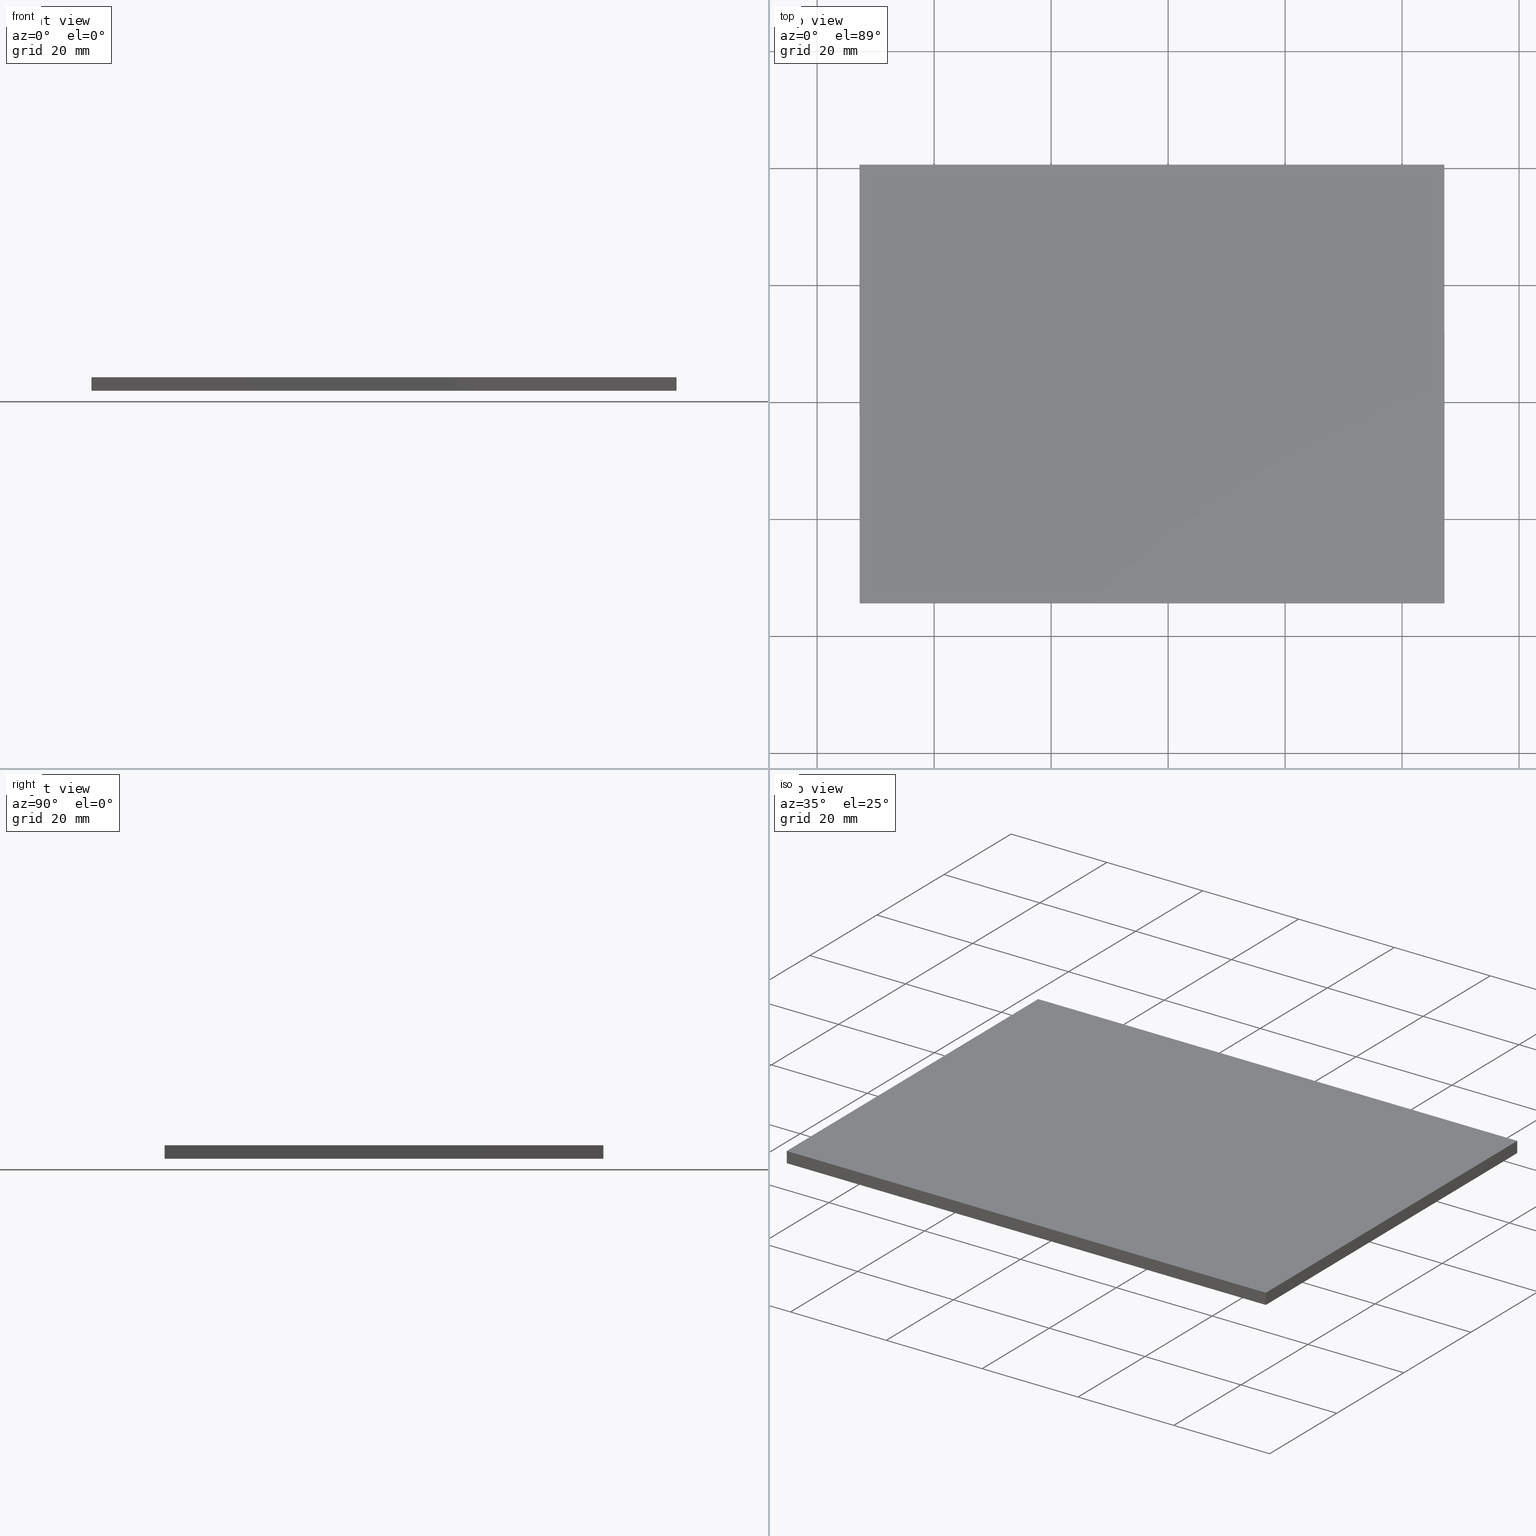
[diagram: canonical four-view strip — front | top / right | iso, engineering-drawing reading convention]
A machine part, canonical four-view strip (front | top / right | iso — engineering-drawing reading convention). The complete STEP part file that produces these views, byte-faithful:
ISO-10303-21;
HEADER;
FILE_DESCRIPTION (( 'STEP AP214' ),
    '1' );
FILE_NAME ('302528.STEP',
    '2019-08-13T07:11:26',
    ( '' ),
    ( '' ),
    'SwSTEP 2.0',
    'SolidWorks 2016',
    '' );
FILE_SCHEMA (( 'AUTOMOTIVE_DESIGN' ));
ENDSEC;

DATA;
#1 = EDGE_LOOP ( 'NONE', ( #187, #54, #140, #80 ) ) ;
#2 = ADVANCED_FACE ( 'NONE', ( #118 ), #26, .F. ) ;
#3 = ORIENTED_EDGE ( 'NONE', *, *, #14, .T. ) ;
#4 = COLOUR_RGB ( '',1.000000000000000000, 1.000000000000000000, 1.000000000000000000 ) ;
#5 = DIRECTION ( 'NONE',  ( 2.775639150277182100E-016, 1.000000000000000000, -0.0000000000000000000 ) ) ;
#6 = SHAPE_DEFINITION_REPRESENTATION ( #37, #153 ) ;
#7 = CARTESIAN_POINT ( 'NONE',  ( 167.2299678845673700, 160.6264836690531600, 2.299999999999999800 ) ) ;
#8 = CARTESIAN_POINT ( 'NONE',  ( 267.2299678845673200, 160.6264836690531900, 0.0000000000000000000 ) ) ;
#9 = DIRECTION ( 'NONE',  ( 2.775557561562892800E-016, -1.000000000000000000, 0.0000000000000000000 ) ) ;
#10 = ADVANCED_FACE ( 'NONE', ( #74 ), #131, .T. ) ;
#11 = FILL_AREA_STYLE_COLOUR ( '', #4 ) ;
#12 = VECTOR ( 'NONE', #70, 1000.000000000000000 ) ;
#13 = CARTESIAN_POINT ( 'NONE',  ( 267.2628910959036800, 85.62648366905317200, 0.0000000000000000000 ) ) ;
#14 = EDGE_CURVE ( 'NONE', #100, #121, #64, .T. ) ;
#15 = CARTESIAN_POINT ( 'NONE',  ( 167.2658305527232900, 85.62648366905320100, 2.299999999999999800 ) ) ;
#16 = DIRECTION ( 'NONE',  ( 1.000000000000000000, -2.775639150277182100E-016, 0.0000000000000000000 ) ) ;
#17 = ORIENTED_EDGE ( 'NONE', *, *, #18, .F. ) ;
#18 = EDGE_CURVE ( 'NONE', #120, #100, #39, .T. ) ;
#19 = ORIENTED_EDGE ( 'NONE', *, *, #122, .F. ) ;
#20 = VECTOR ( 'NONE', #115, 999.9999999999998900 ) ;
#21 = DIRECTION ( 'NONE',  ( -0.9999999036499832600, -0.0004389761088560449900, 0.0000000000000000000 ) ) ;
#22 = ORIENTED_EDGE ( 'NONE', *, *, #157, .F. ) ;
#23 = DIRECTION ( 'NONE',  ( -0.0004389761088560449900, 0.9999999036499833700, -0.0000000000000000000 ) ) ;
#24 = EDGE_CURVE ( 'NONE', #33, #159, #72, .T. ) ;
#25 =( NAMED_UNIT ( * ) PLANE_ANGLE_UNIT ( ) SI_UNIT ( $, .RADIAN. ) );
#26 = PLANE ( 'NONE',  #93 ) ;
#27 = ADVANCED_FACE ( 'NONE', ( #36 ), #111, .F. ) ;
#28 = DIRECTION ( 'NONE',  ( -0.0004781688540799851800, 0.9999998856772670500, 0.0000000000000000000 ) ) ;
#29 = CARTESIAN_POINT ( 'NONE',  ( 167.2299678845673700, 160.6264836690531600, 2.299999999999999800 ) ) ;
#30 = PRODUCT_RELATED_PRODUCT_CATEGORY ( 'part', '', ( #94 ) ) ;
#31 = CARTESIAN_POINT ( 'NONE',  ( 167.2299678845673700, 160.6264836690531600, 2.299999999999999800 ) ) ;
#32 = CARTESIAN_POINT ( 'NONE',  ( 267.2299678845673200, 160.6264836690531900, 2.299999999999999800 ) ) ;
#33 = VERTEX_POINT ( 'NONE', #144 ) ;
#34 = VECTOR ( 'NONE', #82, 1000.000000000000000 ) ;
#35 = EDGE_CURVE ( 'NONE', #185, #120, #98, .T. ) ;
#36 = FACE_OUTER_BOUND ( 'NONE', #78, .T. ) ;
#37 = PRODUCT_DEFINITION_SHAPE ( 'NONE', 'NONE',  #186 ) ;
#38 = FACE_OUTER_BOUND ( 'NONE', #1, .T. ) ;
#39 = LINE ( 'NONE', #42, #155 ) ;
#40 = DIRECTION ( 'NONE',  ( 1.000000000000000000, 0.0000000000000000000, -0.0000000000000000000 ) ) ;
#41 = APPLICATION_PROTOCOL_DEFINITION ( 'draft international standard', 'automotive_design', 1998, #58 ) ;
#42 = CARTESIAN_POINT ( 'NONE',  ( 167.2299678845673700, 160.6264836690531600, 2.299999999999999800 ) ) ;
#43 =( LENGTH_UNIT ( ) NAMED_UNIT ( * ) SI_UNIT ( .MILLI., .METRE. ) );
#44 = PRODUCT_CONTEXT ( 'NONE', #68, 'mechanical' ) ;
#45 =( NAMED_UNIT ( * ) PLANE_ANGLE_UNIT ( ) SI_UNIT ( $, .RADIAN. ) );
#46 = DIRECTION ( 'NONE',  ( 0.0000000000000000000, 0.0000000000000000000, 1.000000000000000000 ) ) ;
#47 = DIRECTION ( 'NONE',  ( -0.0000000000000000000, -0.0000000000000000000, -1.000000000000000000 ) ) ;
#48 = EDGE_CURVE ( 'NONE', #120, #51, #179, .T. ) ;
#49 = CARTESIAN_POINT ( 'NONE',  ( 267.2628910959036800, 85.62648366905317200, 2.299999999999999800 ) ) ;
#50 = LINE ( 'NONE', #49, #182 ) ;
#51 = VERTEX_POINT ( 'NONE', #8 ) ;
#52 = STYLED_ITEM ( 'NONE', ( #117 ), #79 ) ;
#53 = ORIENTED_EDGE ( 'NONE', *, *, #18, .T. ) ;
#54 = ORIENTED_EDGE ( 'NONE', *, *, #48, .F. ) ;
#55 = DIRECTION ( 'NONE',  ( 0.0004389761088560449900, -0.9999999036499832600, 0.0000000000000000000 ) ) ;
#56 =( NAMED_UNIT ( * ) SI_UNIT ( $, .STERADIAN. ) SOLID_ANGLE_UNIT ( ) );
#57 = DIRECTION ( 'NONE',  ( -1.000000000000000000, 2.775639150277182100E-016, 0.0000000000000000000 ) ) ;
#58 = APPLICATION_CONTEXT ( 'automotive_design' ) ;
#59 = CARTESIAN_POINT ( 'NONE',  ( 267.2299678845673200, 160.6264836690531900, 0.0000000000000000000 ) ) ;
#60 =( LENGTH_UNIT ( ) NAMED_UNIT ( * ) SI_UNIT ( .MILLI., .METRE. ) );
#61 =( GEOMETRIC_REPRESENTATION_CONTEXT ( 3 ) GLOBAL_UNCERTAINTY_ASSIGNED_CONTEXT ( ( #169 ) ) GLOBAL_UNIT_ASSIGNED_CONTEXT ( ( #142, #45, #195 ) ) REPRESENTATION_CONTEXT ( 'NONE', 'WORKASPACE' ) );
#62 = ORIENTED_EDGE ( 'NONE', *, *, #116, .F. ) ;
#63 = ADVANCED_FACE ( 'NONE', ( #38 ), #191, .F. ) ;
#64 = LINE ( 'NONE', #7, #197 ) ;
#65 = PRESENTATION_STYLE_ASSIGNMENT (( #192 ) ) ;
#66 = CARTESIAN_POINT ( 'NONE',  ( 167.2299678845673700, 160.6264836690531600, 2.299999999999999800 ) ) ;
#67 = FACE_OUTER_BOUND ( 'NONE', #201, .T. ) ;
#68 = APPLICATION_CONTEXT ( 'automotive_design' ) ;
#69 = ADVANCED_FACE ( 'NONE', ( #67 ), #148, .F. ) ;
#70 = DIRECTION ( 'NONE',  ( -1.000000000000000000, -2.775557561562892800E-016, -0.0000000000000000000 ) ) ;
#71 =( NAMED_UNIT ( * ) SI_UNIT ( $, .STERADIAN. ) SOLID_ANGLE_UNIT ( ) );
#72 = LINE ( 'NONE', #176, #34 ) ;
#73 = PRESENTATION_LAYER_ASSIGNMENT (  '', '', ( #52 ) ) ;
#74 = FACE_OUTER_BOUND ( 'NONE', #174, .T. ) ;
#75 = LINE ( 'NONE', #189, #139 ) ;
#76 = FACE_OUTER_BOUND ( 'NONE', #190, .T. ) ;
#77 = AXIS2_PLACEMENT_3D ( 'NONE', #178, #99, #40 ) ;
#78 = EDGE_LOOP ( 'NONE', ( #199, #22, #108, #156 ) ) ;
#79 = MANIFOLD_SOLID_BREP ( '͹̨-����1', #172 ) ;
#80 = ORIENTED_EDGE ( 'NONE', *, *, #157, .T. ) ;
#81 = CARTESIAN_POINT ( 'NONE',  ( 267.2299678845673200, 160.6264836690531900, 2.299999999999999800 ) ) ;
#82 = DIRECTION ( 'NONE',  ( -0.0000000000000000000, -0.0000000000000000000, -1.000000000000000000 ) ) ;
#83 = PRODUCT_DEFINITION_CONTEXT ( 'detailed design', #58, 'design' ) ;
#84 = DIRECTION ( 'NONE',  ( 1.000000000000000000, 2.775557561562892800E-016, 0.0000000000000000000 ) ) ;
#85 = FILL_AREA_STYLE ('',( #129 ) ) ;
#86 = CARTESIAN_POINT ( 'NONE',  ( 167.2299678845673700, 160.6264836690531600, 2.299999999999999800 ) ) ;
#87 = SURFACE_STYLE_FILL_AREA ( #85 ) ;
#88 = ORIENTED_EDGE ( 'NONE', *, *, #116, .T. ) ;
#89 = CARTESIAN_POINT ( 'NONE',  ( 167.2299678845673700, 160.6264836690531600, 0.0000000000000000000 ) ) ;
#90 =( GEOMETRIC_REPRESENTATION_CONTEXT ( 3 ) GLOBAL_UNCERTAINTY_ASSIGNED_CONTEXT ( ( #184 ) ) GLOBAL_UNIT_ASSIGNED_CONTEXT ( ( #60, #194, #71 ) ) REPRESENTATION_CONTEXT ( 'NONE', 'WORKASPACE' ) );
#91 = ORIENTED_EDGE ( 'NONE', *, *, #14, .F. ) ;
#92 = LINE ( 'NONE', #29, #20 ) ;
#93 = AXIS2_PLACEMENT_3D ( 'NONE', #66, #9, #84 ) ;
#94 = PRODUCT ( '302528', '302528', '', ( #44 ) ) ;
#95 = ORIENTED_EDGE ( 'NONE', *, *, #158, .F. ) ;
#96 = VECTOR ( 'NONE', #16, 1000.000000000000000 ) ;
#97 = AXIS2_PLACEMENT_3D ( 'NONE', #31, #166, #28 ) ;
#98 = LINE ( 'NONE', #81, #196 ) ;
#99 = DIRECTION ( 'NONE',  ( 0.0000000000000000000, 0.0000000000000000000, 1.000000000000000000 ) ) ;
#100 = VERTEX_POINT ( 'NONE', #86 ) ;
#101 = VECTOR ( 'NONE', #134, 1000.000000000000000 ) ;
#102 = DIRECTION ( 'NONE',  ( -0.0000000000000000000, -0.0000000000000000000, -1.000000000000000000 ) ) ;
#103 = COLOUR_RGB ( '',1.000000000000000000, 1.000000000000000000, 1.000000000000000000 ) ;
#104 = DIRECTION ( 'NONE',  ( 0.0000000000000000000, 0.0000000000000000000, 1.000000000000000000 ) ) ;
#105 = DIRECTION ( 'NONE',  ( 0.0004781688540799851800, -0.9999998856772670500, 0.0000000000000000000 ) ) ;
#106 = CARTESIAN_POINT ( 'NONE',  ( 167.2658305527232900, 85.62648366905320100, 0.0000000000000000000 ) ) ;
#107 = EDGE_LOOP ( 'NONE', ( #162, #91, #17, #165 ) ) ;
#108 = ORIENTED_EDGE ( 'NONE', *, *, #167, .F. ) ;
#109 = AXIS2_PLACEMENT_3D ( 'NONE', #149, #46, #146 ) ;
#110 = VECTOR ( 'NONE', #102, 1000.000000000000000 ) ;
#111 = PLANE ( 'NONE',  #150 ) ;
#112 = CARTESIAN_POINT ( 'NONE',  ( 167.2658305527232900, 85.62648366905320100, 2.299999999999999800 ) ) ;
#113 = SURFACE_SIDE_STYLE ('',( #87 ) ) ;
#114 = VERTEX_POINT ( 'NONE', #13 ) ;
#115 = DIRECTION ( 'NONE',  ( 0.0004781688540799851800, -0.9999998856772670500, 0.0000000000000000000 ) ) ;
#116 = EDGE_CURVE ( 'NONE', #121, #159, #75, .T. ) ;
#117 = PRESENTATION_STYLE_ASSIGNMENT (( #193 ) ) ;
#118 = FACE_OUTER_BOUND ( 'NONE', #107, .T. ) ;
#119 = CARTESIAN_POINT ( 'NONE',  ( 267.2628910959036800, 85.62648366905317200, 2.299999999999999800 ) ) ;
#120 = VERTEX_POINT ( 'NONE', #32 ) ;
#121 = VERTEX_POINT ( 'NONE', #136 ) ;
#122 = EDGE_CURVE ( 'NONE', #51, #121, #135, .T. ) ;
#123 = ORIENTED_EDGE ( 'NONE', *, *, #141, .F. ) ;
#124 = STYLED_ITEM ( 'NONE', ( #65 ), #153 ) ;
#125 =( GEOMETRIC_REPRESENTATION_CONTEXT ( 3 ) GLOBAL_UNCERTAINTY_ASSIGNED_CONTEXT ( ( #132 ) ) GLOBAL_UNIT_ASSIGNED_CONTEXT ( ( #43, #25, #56 ) ) REPRESENTATION_CONTEXT ( 'NONE', 'WORKASPACE' ) );
#126 = ORIENTED_EDGE ( 'NONE', *, *, #145, .F. ) ;
#127 = CARTESIAN_POINT ( 'NONE',  ( 0.0000000000000000000, 0.0000000000000000000, 2.299999999999999800 ) ) ;
#128 = ORIENTED_EDGE ( 'NONE', *, *, #24, .F. ) ;
#129 = FILL_AREA_STYLE_COLOUR ( '', #103 ) ;
#130 = FILL_AREA_STYLE ('',( #11 ) ) ;
#131 = PLANE ( 'NONE',  #198 ) ;
#132 = UNCERTAINTY_MEASURE_WITH_UNIT (LENGTH_MEASURE( 1.000000000000000100E-005 ), #43, 'distance_accuracy_value', 'NONE');
#133 = CARTESIAN_POINT ( 'NONE',  ( 267.2299678845673200, 160.6264836690531900, 2.299999999999999800 ) ) ;
#134 = DIRECTION ( 'NONE',  ( 1.000000000000000000, -2.775639150277182100E-016, 0.0000000000000000000 ) ) ;
#135 = LINE ( 'NONE', #89, #12 ) ;
#136 = CARTESIAN_POINT ( 'NONE',  ( 167.2299678845673700, 160.6264836690531600, 0.0000000000000000000 ) ) ;
#137 = ORIENTED_EDGE ( 'NONE', *, *, #145, .T. ) ;
#138 = PRESENTATION_LAYER_ASSIGNMENT (  '', '', ( #124 ) ) ;
#139 = VECTOR ( 'NONE', #105, 999.9999999999998900 ) ;
#140 = ORIENTED_EDGE ( 'NONE', *, *, #35, .F. ) ;
#141 = EDGE_CURVE ( 'NONE', #114, #51, #171, .T. ) ;
#142 =( LENGTH_UNIT ( ) NAMED_UNIT ( * ) SI_UNIT ( .MILLI., .METRE. ) );
#143 = SURFACE_SIDE_STYLE ('',( #160 ) ) ;
#144 = CARTESIAN_POINT ( 'NONE',  ( 167.2658305527232900, 85.62648366905320100, 2.299999999999999800 ) ) ;
#145 = EDGE_CURVE ( 'NONE', #100, #33, #92, .T. ) ;
#146 = DIRECTION ( 'NONE',  ( 1.000000000000000000, 0.0000000000000000000, 0.0000000000000000000 ) ) ;
#147 = ORIENTED_EDGE ( 'NONE', *, *, #35, .T. ) ;
#148 = PLANE ( 'NONE',  #77 ) ;
#149 = CARTESIAN_POINT ( 'NONE',  ( 0.0000000000000000000, 0.0000000000000000000, 0.0000000000000000000 ) ) ;
#150 = AXIS2_PLACEMENT_3D ( 'NONE', #112, #5, #57 ) ;
#151 = DIRECTION ( 'NONE',  ( -0.0004389761088560449900, 0.9999999036499833700, -0.0000000000000000000 ) ) ;
#152 = LINE ( 'NONE', #15, #101 ) ;
#153 = ADVANCED_BREP_SHAPE_REPRESENTATION ( '302528', ( #79, #109 ), #90 ) ;
#154 = PRODUCT_DEFINITION_FORMATION_WITH_SPECIFIED_SOURCE ( '�κ�', '', #94, .NOT_KNOWN. ) ;
#155 = VECTOR ( 'NONE', #175, 1000.000000000000000 ) ;
#156 = ORIENTED_EDGE ( 'NONE', *, *, #24, .T. ) ;
#157 = EDGE_CURVE ( 'NONE', #185, #114, #50, .T. ) ;
#158 = EDGE_CURVE ( 'NONE', #159, #114, #202, .T. ) ;
#159 = VERTEX_POINT ( 'NONE', #164 ) ;
#160 = SURFACE_STYLE_FILL_AREA ( #130 ) ;
#161 = DIRECTION ( 'NONE',  ( -0.0000000000000000000, -0.0000000000000000000, -1.000000000000000000 ) ) ;
#162 = ORIENTED_EDGE ( 'NONE', *, *, #122, .T. ) ;
#163 = DIRECTION ( 'NONE',  ( 1.000000000000000000, 0.0000000000000000000, -0.0000000000000000000 ) ) ;
#164 = CARTESIAN_POINT ( 'NONE',  ( 167.2658305527232900, 85.62648366905320100, 0.0000000000000000000 ) ) ;
#165 = ORIENTED_EDGE ( 'NONE', *, *, #48, .T. ) ;
#166 = DIRECTION ( 'NONE',  ( 0.9999998856772670500, 0.0004781688540799851800, -0.0000000000000000000 ) ) ;
#167 = EDGE_CURVE ( 'NONE', #33, #185, #152, .T. ) ;
#168 = ORIENTED_EDGE ( 'NONE', *, *, #167, .T. ) ;
#169 = UNCERTAINTY_MEASURE_WITH_UNIT (LENGTH_MEASURE( 1.000000000000000100E-005 ), #142, 'distance_accuracy_value', 'NONE');
#170 = MECHANICAL_DESIGN_GEOMETRIC_PRESENTATION_REPRESENTATION (  '', ( #124 ), #125 ) ;
#171 = LINE ( 'NONE', #59, #200 ) ;
#172 = CLOSED_SHELL ( 'NONE', ( #180, #27, #63, #2, #10, #69 ) ) ;
#173 = AXIS2_PLACEMENT_3D ( 'NONE', #133, #21, #55 ) ;
#174 = EDGE_LOOP ( 'NONE', ( #137, #168, #147, #53 ) ) ;
#175 = DIRECTION ( 'NONE',  ( -1.000000000000000000, -2.775557561562892800E-016, -0.0000000000000000000 ) ) ;
#176 = CARTESIAN_POINT ( 'NONE',  ( 167.2658305527232900, 85.62648366905320100, 2.299999999999999800 ) ) ;
#177 = APPLICATION_PROTOCOL_DEFINITION ( 'draft international standard', 'automotive_design', 1998, #68 ) ;
#178 = CARTESIAN_POINT ( 'NONE',  ( 0.0000000000000000000, 0.0000000000000000000, 0.0000000000000000000 ) ) ;
#179 = LINE ( 'NONE', #188, #110 ) ;
#180 = ADVANCED_FACE ( 'NONE', ( #76 ), #181, .F. ) ;
#181 = PLANE ( 'NONE',  #97 ) ;
#182 = VECTOR ( 'NONE', #47, 1000.000000000000000 ) ;
#183 = MECHANICAL_DESIGN_GEOMETRIC_PRESENTATION_REPRESENTATION (  '', ( #52 ), #61 ) ;
#184 = UNCERTAINTY_MEASURE_WITH_UNIT (LENGTH_MEASURE( 1.000000000000000100E-005 ), #60, 'distance_accuracy_value', 'NONE');
#185 = VERTEX_POINT ( 'NONE', #119 ) ;
#186 = PRODUCT_DEFINITION ( 'δ֪', '', #154, #83 ) ;
#187 = ORIENTED_EDGE ( 'NONE', *, *, #141, .T. ) ;
#188 = CARTESIAN_POINT ( 'NONE',  ( 267.2299678845673200, 160.6264836690531900, 2.299999999999999800 ) ) ;
#189 = CARTESIAN_POINT ( 'NONE',  ( 167.2299678845673700, 160.6264836690531600, 0.0000000000000000000 ) ) ;
#190 = EDGE_LOOP ( 'NONE', ( #88, #128, #126, #3 ) ) ;
#191 = PLANE ( 'NONE',  #173 ) ;
#192 = SURFACE_STYLE_USAGE ( .BOTH. , #143 ) ;
#193 = SURFACE_STYLE_USAGE ( .BOTH. , #113 ) ;
#194 =( NAMED_UNIT ( * ) PLANE_ANGLE_UNIT ( ) SI_UNIT ( $, .RADIAN. ) );
#195 =( NAMED_UNIT ( * ) SI_UNIT ( $, .STERADIAN. ) SOLID_ANGLE_UNIT ( ) );
#196 = VECTOR ( 'NONE', #23, 999.9999999999998900 ) ;
#197 = VECTOR ( 'NONE', #161, 1000.000000000000000 ) ;
#198 = AXIS2_PLACEMENT_3D ( 'NONE', #127, #104, #163 ) ;
#199 = ORIENTED_EDGE ( 'NONE', *, *, #158, .T. ) ;
#200 = VECTOR ( 'NONE', #151, 999.9999999999998900 ) ;
#201 = EDGE_LOOP ( 'NONE', ( #62, #19, #123, #95 ) ) ;
#202 = LINE ( 'NONE', #106, #96 ) ;
ENDSEC;
END-ISO-10303-21;
